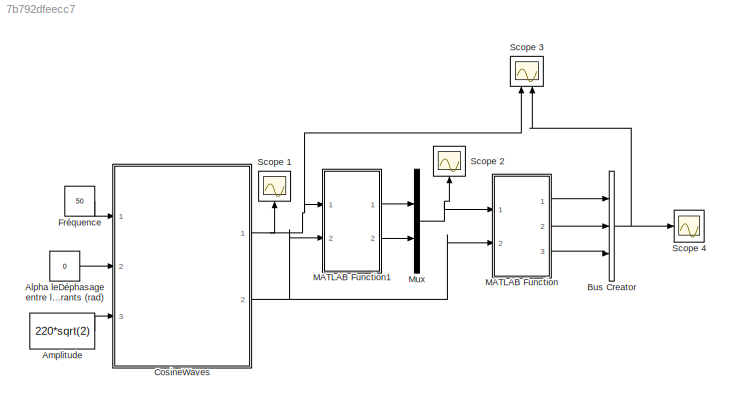
MODEL slx_7b792dfeecc7
KIND model
CONFIG AbsTol = 1e-6
CONFIG EnableMultiTasking = off
CONFIG FixedStep = 1e-4
CONFIG MaxStep = auto
CONFIG MinStep = auto
CONFIG PostLoadFcn = , if any(exist('dsrtsu_mdlpostloadfcn', 'file') == [2, 3, 6]), try dsrtsu_mdlpostloadfcn('Execute', bdroot); catch fprintf('Error in PostLoadFcn (dsrtsu_mdlpostloadfcn) for model "%s":\n %s\n', bdroot, lasterr); end, end, \n
CONFIG RelTol = 1e-6
CONFIG SampleTimeConstraint = Unconstrained
CONFIG SolverName = ode1
CONFIG StartTime = 0.0
CONFIG StopTime = 1
BLOCK [Constant] Alpha leDéphasage entre les courants (rad)
  Value = 0
BLOCK [Constant] Amplitude
  Value = 220*sqrt(2)
BLOCK [BusCreator] Bus Creator
  DisplayOption = bar
  InheritFromInputs = on
  Inputs = 3
  Ports = [3, 1]
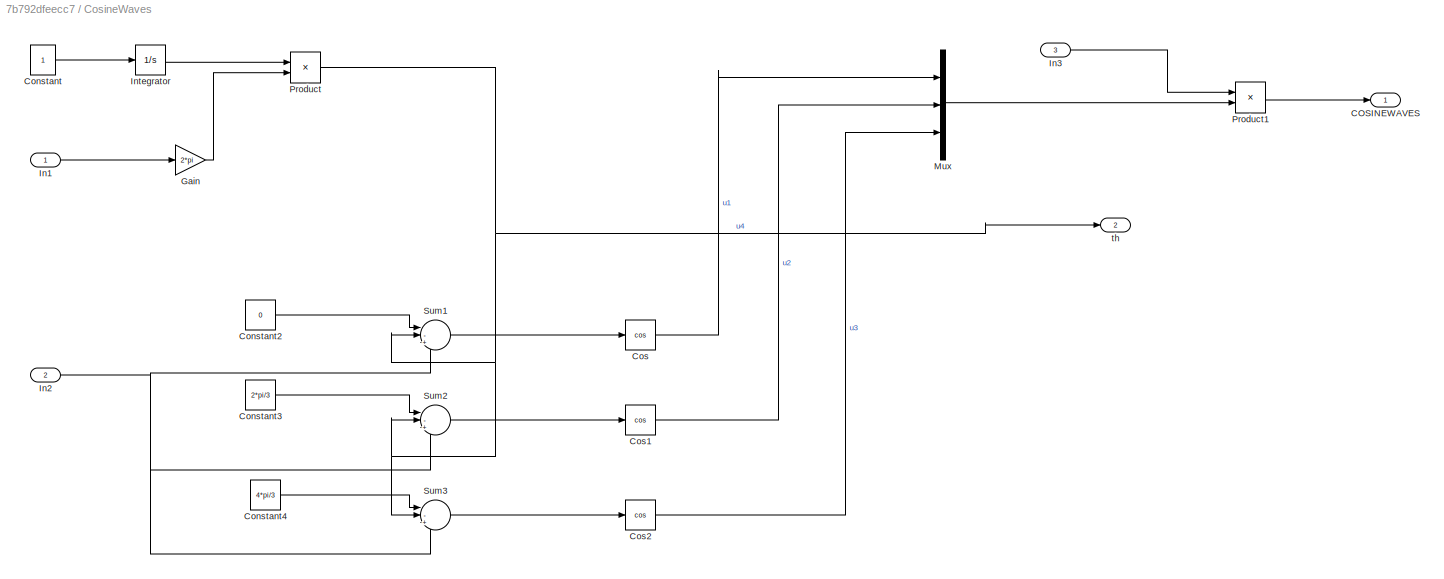
BLOCK [SubSystem] CosineWaves
  Ports = [3, 2]
  RequestExecContextInheritance = off
BLOCK [Outport] CosineWaves/COSINEWAVES
BLOCK [Constant] CosineWaves/Constant
BLOCK [Constant] CosineWaves/Constant2
  Value = 0
BLOCK [Constant] CosineWaves/Constant3
  Value = 2*pi/3
BLOCK [Constant] CosineWaves/Constant4
  Value = 4*pi/3
BLOCK [Trigonometry] CosineWaves/Cos
  Operator = cos
  Ports = [1, 1]
BLOCK [Trigonometry] CosineWaves/Cos1
  Operator = cos
  Ports = [1, 1]
BLOCK [Trigonometry] CosineWaves/Cos2
  Operator = cos
  Ports = [1, 1]
BLOCK [Gain] CosineWaves/Gain
  Gain = 2*pi
BLOCK [Inport] CosineWaves/In1
BLOCK [Inport] CosineWaves/In2
  Port = 2
BLOCK [Inport] CosineWaves/In3
  Port = 3
BLOCK [Integrator] CosineWaves/Integrator
  Ports = [1, 1]
BLOCK [Mux] CosineWaves/Mux
  DisplayOption = bar
  Inputs = 3
  Ports = [3, 1]
BLOCK [Product] CosineWaves/Product
  Ports = [2, 1]
BLOCK [Product] CosineWaves/Product1
  Ports = [2, 1]
BLOCK [Sum] CosineWaves/Sum1
  Inputs = |-+|+
  NameLocation = top
  Ports = [3, 1]
BLOCK [Sum] CosineWaves/Sum2
  Inputs = |-+|+
  NameLocation = top
  Ports = [3, 1]
BLOCK [Sum] CosineWaves/Sum3
  Inputs = |-+|+
  NameLocation = top
  Ports = [3, 1]
BLOCK [Outport] CosineWaves/th
  Port = 2
BLOCK [Constant] Fréquence
  Value = 50
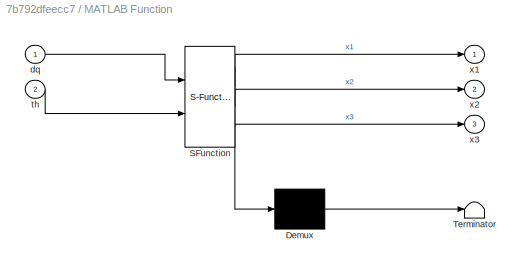
BLOCK [SubSystem] MATLAB Function
  ErrorFcn = Stateflow.Translate.translate
  PermitHierarchicalResolution = ExplicitOnly
  Ports = [2, 3]
  RequestExecContextInheritance = off
  SFBlockType = MATLAB Function
  TreatAsAtomicUnit = on
BLOCK [Demux] MATLAB Function/ Demux 
  Outputs = 1
  Ports = [1, 1]
BLOCK [S-Function] MATLAB Function/ SFunction 
  EnableBusSupport = on
  FunctionName = sf_sfun
  PortCounts = [2 4]
  Ports = [2, 4]
  SFcnIsStateOwnerBlock = off
  SFunctionDeploymentMode = off
  Tag = Stateflow S-Function 2
BLOCK [Terminator] MATLAB Function/ Terminator 
BLOCK [Inport] MATLAB Function/dq
BLOCK [Inport] MATLAB Function/th
  Port = 2
BLOCK [Outport] MATLAB Function/x1
BLOCK [Outport] MATLAB Function/x2
  Port = 2
BLOCK [Outport] MATLAB Function/x3
  Port = 3
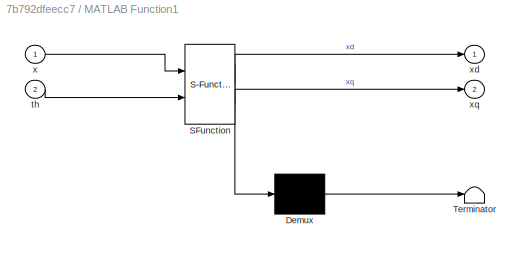
BLOCK [SubSystem] MATLAB Function1
  ErrorFcn = Stateflow.Translate.translate
  PermitHierarchicalResolution = ExplicitOnly
  Ports = [2, 2]
  RequestExecContextInheritance = off
  SFBlockType = MATLAB Function
  TreatAsAtomicUnit = on
BLOCK [Demux] MATLAB Function1/ Demux 
  Outputs = 1
  Ports = [1, 1]
BLOCK [S-Function] MATLAB Function1/ SFunction 
  EnableBusSupport = on
  FunctionName = sf_sfun
  PortCounts = [2 3]
  Ports = [2, 3]
  SFcnIsStateOwnerBlock = off
  SFunctionDeploymentMode = off
  Tag = Stateflow S-Function 1
BLOCK [Terminator] MATLAB Function1/ Terminator 
BLOCK [Inport] MATLAB Function1/th
  Port = 2
BLOCK [Inport] MATLAB Function1/x
BLOCK [Outport] MATLAB Function1/xd
BLOCK [Outport] MATLAB Function1/xq
  Port = 2
BLOCK [Mux] Mux
  DisplayOption = bar
  Inputs = 2
  Ports = [2, 1]
BLOCK [Scope] Scope 1
  Floating = off
  NameLocation = right
  NumInputPorts = 1
  Ports = [1]
  ScopeSpecificationString = Simulink.scopes.TimeScopeBlockCfg('CurrentConfiguration', extmgr.ConfigurationSet(extmgr.Configuration('Core','General UI',true),extmgr.Configuration('Core','Source UI',true),extmgr.Configuration('Sources','WiredSimulink',true,'DataLoggingVariableName','ScopeData1'),extmgr.Configuration('Visuals','Time Domain',true,'SerializedDisplays',{struct('MinYLimReal','-388.90873','MaxYLimReal','388.90873','...<+1760ch>
BLOCK [Scope] Scope 2
  Floating = off
  NameLocation = right
  NumInputPorts = 1
  Ports = [1]
  ScopeSpecificationString = Simulink.scopes.TimeScopeBlockCfg('CurrentConfiguration', extmgr.ConfigurationSet(extmgr.Configuration('Core','General UI',true),extmgr.Configuration('Core','Source UI',true),extmgr.Configuration('Sources','WiredSimulink',true,'DataLoggingVariableName','ScopeData2'),extmgr.Configuration('Visuals','Time Domain',true,'SerializedDisplays',{struct('MinYLimReal','-38.89087','MaxYLimReal','350.01786','Y...<+1510ch>
BLOCK [Scope] Scope 3
  Floating = off
  NameLocation = right
  NumInputPorts = 2
  Ports = [2]
  ScopeSpecificationString = Simulink.scopes.TimeScopeBlockCfg('CurrentConfiguration', extmgr.ConfigurationSet(extmgr.Configuration('Core','General UI',true),extmgr.Configuration('Core','Source UI',true),extmgr.Configuration('Sources','WiredSimulink',true,'DataLoggingVariableName','ScopeData1'),extmgr.Configuration('Visuals','Time Domain',true,'SerializedDisplays',{struct('MinYLimReal','-379.92874','MaxYLimReal','329.00573','...<+2626ch>
BLOCK [Scope] Scope 4
  Floating = off
  NumInputPorts = 1
  Ports = [1]
  ScopeSpecificationString = Simulink.scopes.TimeScopeBlockCfg('CurrentConfiguration', extmgr.ConfigurationSet(extmgr.Configuration('Core','General UI',true),extmgr.Configuration('Core','Source UI',true),extmgr.Configuration('Sources','WiredSimulink',true),extmgr.Configuration('Visuals','Time Domain',true,'SerializedDisplays',{struct('MinYLimReal','-388.90873','MaxYLimReal','388.90873','YLabelReal','','MinYLimMag',' 0.00000',...<+1431ch>
LINE Alpha leDéphasage entre les courants (rad):1 -> CosineWaves:2
LINE Amplitude:1 -> CosineWaves:3
NET Bus Creator:1 -> Scope 3:2, Scope 4:1
LINE CosineWaves/Constant2:1 -> CosineWaves/Sum1:1
LINE CosineWaves/Constant3:1 -> CosineWaves/Sum2:1
LINE CosineWaves/Constant4:1 -> CosineWaves/Sum3:1
LINE CosineWaves/Constant:1 -> CosineWaves/Integrator:1
LINE CosineWaves/Cos1:1 -> CosineWaves/Mux:2
LINE CosineWaves/Cos2:1 -> CosineWaves/Mux:3
LINE CosineWaves/Cos:1 -> CosineWaves/Mux:1
LINE CosineWaves/Gain:1 -> CosineWaves/Product:2
LINE CosineWaves/In1:1 -> CosineWaves/Gain:1
NET CosineWaves/In2:1 -> CosineWaves/Sum1:3, CosineWaves/Sum2:3, CosineWaves/Sum3:3
LINE CosineWaves/In3:1 -> CosineWaves/Product1:1
LINE CosineWaves/Integrator:1 -> CosineWaves/Product:1
LINE CosineWaves/Mux:1 -> CosineWaves/Product1:2
LINE CosineWaves/Product1:1 -> CosineWaves/COSINEWAVES:1
NET CosineWaves/Product:1 -> CosineWaves/Sum1:2, CosineWaves/Sum2:2, CosineWaves/Sum3:2, CosineWaves/th:1
LINE CosineWaves/Sum1:1 -> CosineWaves/Cos:1
LINE CosineWaves/Sum2:1 -> CosineWaves/Cos1:1
LINE CosineWaves/Sum3:1 -> CosineWaves/Cos2:1
NET CosineWaves:1 -> MATLAB Function1:1, Scope 1:1, Scope 3:1
NET CosineWaves:2 -> MATLAB Function1:2, MATLAB Function:2
LINE Fréquence:1 -> CosineWaves:1
LINE MATLAB Function1:1 -> Mux:1
LINE MATLAB Function1:2 -> Mux:2
LINE MATLAB Function:1 -> Bus Creator:1
LINE MATLAB Function:2 -> Bus Creator:2
LINE MATLAB Function:3 -> Bus Creator:3
NET Mux:1 -> MATLAB Function:1, Scope 2:1
note: NET lines group one-source signal fan-out (src -> all destinations, sorted); 1:1 wires keep LINE
CHART MATLAB Function1 states=1 transitions=1
  STATE_LABEL 'eML_blk_kernel()'
  STATE_LABEL 'SCRIPT:\nfunction [xd,xq] = Park(x,th)\n% vd=(2/3)*(u1*cos(th)+u2*cos(th-2*pi/3)+u3*cos(th+2*pi/3));\n% vq=(2/3)*(-u1*sin(th)-u2*sin(th-2*pi/3)-u3*sin(th+2*pi/3));\nP=(2/3)*[ cos(th) cos(th-2*pi/3) cos(th+2*pi/3);\n         -sin(th) -sin(th-2*pi/3) -sin(th+2*pi/3)  ];\nprod=P*x;\nxd=prod(1);\nxq=prod(2);'
CHART MATLAB Function states=1 transitions=1
  STATE_LABEL 'eML_blk_kernel()'
  STATE_LABEL 'SCRIPT:\nfunction [x1,x2,x3]= Parkinv(dq,th)\n\nparkinv = [ cos(th),           -sin(th); \n          cos(th-2*pi/3), -sin(th-2*pi/3); \n          cos(th+2*pi/3), -sin(th+2*pi/3)];\n\ntemp = parkinv * [dq];\n\nx1=temp(1);\nx2=temp(2);\nx3=temp(3);'
CHART  states=0 transitions=0
CHART  states=0 transitions=0
